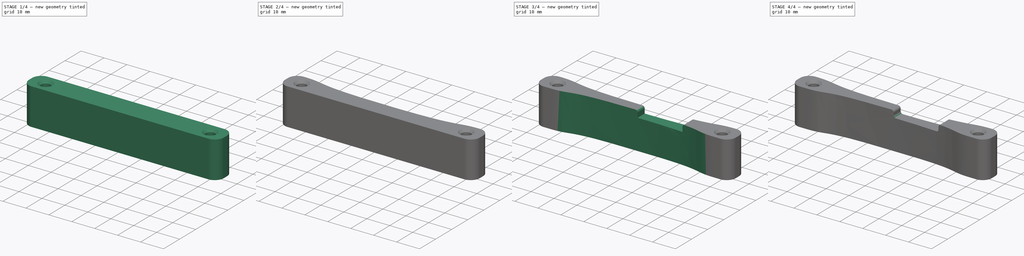
[diagram: build sequence overview — one tinted view per stage of 4, left to right]
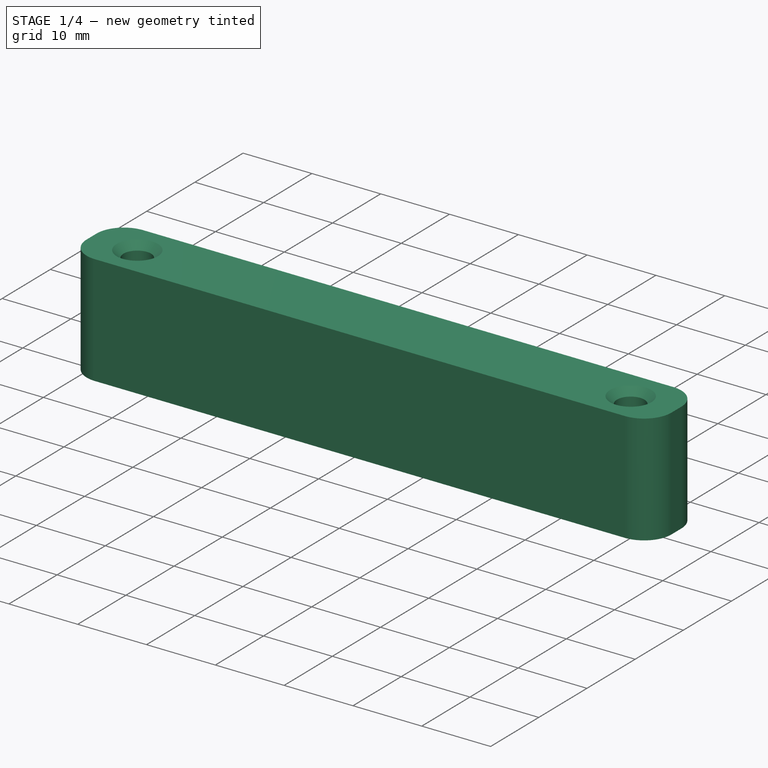
[diagram: stage 1 of 4 — iso view after this stage's code; geometry added in this stage tinted green]
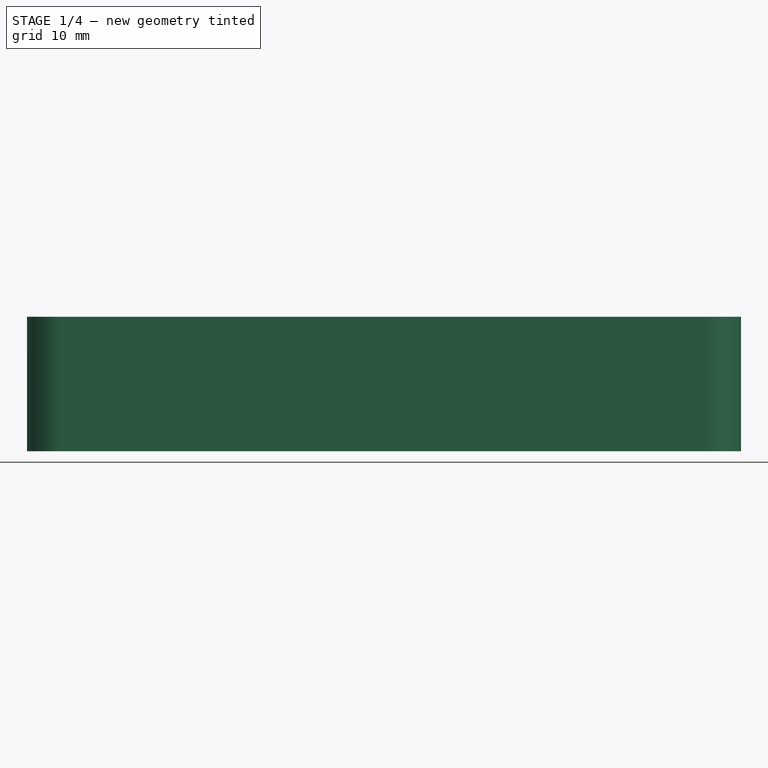
[diagram: stage 1 of 4 — front view after this stage's code; geometry added in this stage tinted green]
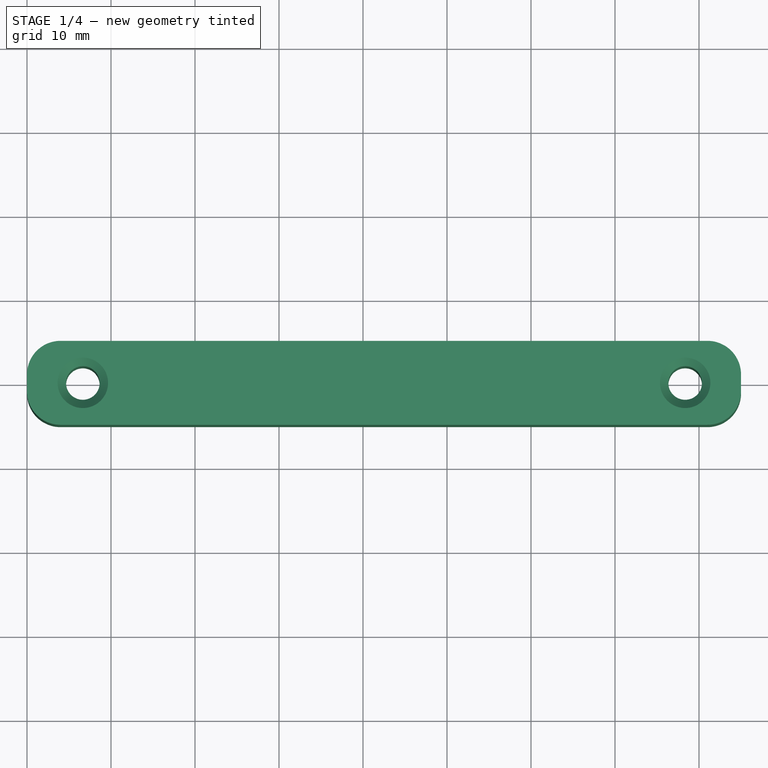
[diagram: stage 1 of 4 — top view after this stage's code; geometry added in this stage tinted green]
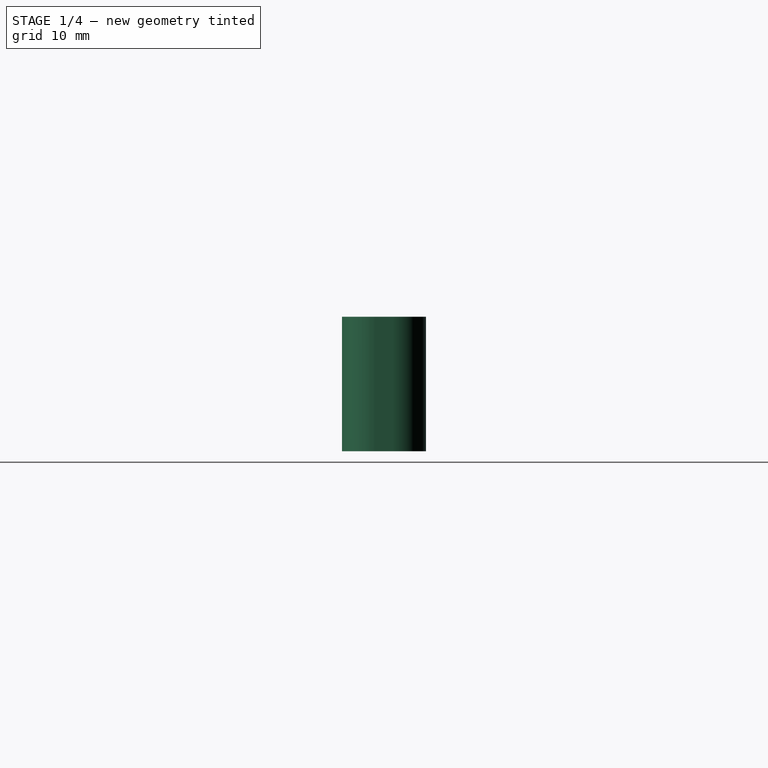
[diagram: stage 1 of 4 — right view after this stage's code; geometry added in this stage tinted green]
FCSTD DOCUMENT  (FreeCAD 0.20R29603 (Git))
Label: entretoise-simple-carte-tirettes
License: Public Domain
LicenseURL: http://en.wikipedia.org/wiki/Public_domain
objects: PartDesign::Fillet×5, Sketcher::SketchObject×4, PartDesign::Chamfer×4, PartDesign::Pocket×3, PartDesign::Pad×1, PartDesign::Body×1
note: 31 computed .brp shape members not serialized (recipe doc carries the construction recipe); baked Part::Feature solids carry a one-line shape summary decoded from their .brp

FEATURE [Sketcher::SketchObject] Sketch
  FullyConstrained = true
  MapMode = 5
  Support = -> [XY_Plane]
  sketch-geometry (16):
    g0: ArcOfCircle CenterX=4 CenterY=1 CenterZ=0 NormalX=0 NormalY=0 NormalZ=1 AngleXU=0 Radius=4 StartAngle=1.5708 EndAngle=3.14159
    g1: LineSegment StartX=4 StartY=5 StartZ=0 EndX=81 EndY=5 EndZ=0
    g2: ArcOfCircle CenterX=81 CenterY=1 CenterZ=0 NormalX=0 NormalY=0 NormalZ=1 AngleXU=0 Radius=4 StartAngle=1e-16 EndAngle=1.5708
    g3: LineSegment StartX=85 StartY=1 StartZ=0 EndX=85 EndY=-1 EndZ=0
    g4: ArcOfCircle CenterX=81 CenterY=-1 CenterZ=0 NormalX=0 NormalY=0 NormalZ=1 AngleXU=0 Radius=4 StartAngle=4.71239 EndAngle=6.28319
    g5: LineSegment StartX=81 StartY=-5 StartZ=0 EndX=4 EndY=-5 EndZ=0
    g6: ArcOfCircle CenterX=4 CenterY=-1 CenterZ=0 NormalX=0 NormalY=0 NormalZ=1 AngleXU=0 Radius=4 StartAngle=3.14159 EndAngle=4.71239
    g7: LineSegment StartX=0 StartY=-1 StartZ=0 EndX=0 EndY=1 EndZ=0
    g8: GeomPoint X=0 Y=5 Z=0
    g9: GeomPoint X=85 Y=-5 Z=0
    g10: Circle CenterX=6.65 CenterY=0 CenterZ=0 NormalX=0 NormalY=0 NormalZ=1 AngleXU=0 Radius=2
    g11: Circle CenterX=78.35 CenterY=0 CenterZ=0 NormalX=0 NormalY=0 NormalZ=1 AngleXU=0 Radius=2
    g12: LineSegment StartX=0 StartY=0 StartZ=0 EndX=6.65 EndY=0 EndZ=0
    g13: LineSegment StartX=78.35 StartY=0 StartZ=0 EndX=85 EndY=0 EndZ=0
    g14: LineSegment StartX=6.65 StartY=0 StartZ=0 EndX=6.65 EndY=5 EndZ=0
    g15: LineSegment StartX=6.65 StartY=0 StartZ=0 EndX=6.65 EndY=-5 EndZ=0
  constraints (40):
    c: Tangent(g0,g1) = 1.5708
    c: Tangent(g1,g2) = 1.5708
    c: Tangent(g2,g3) = 1.5708
    c: Tangent(g3,g4) = 1.5708
    c: Tangent(g4,g5) = 1.5708
    c: Tangent(g5,g6) = 1.5708
    c: Tangent(g6,g7) = 1.5708
    c: Tangent(g7,g0) = 1.5708
    c: Horizontal(g1)
    c: Vertical(g3)
    c: Equal(g0,g2)
    c: Equal(g2,g4)
    c: Equal(g4,g6)
    c: PointOnObject(g8,g1)
    c: PointOnObject(g8,g7)
    c: PointOnObject(g9,g3)
    c: PointOnObject(g9,g5)
    c: DistanceX(g6,g3) = 85
    c: DistanceY(g5,g0) = 10
    c: Radius(g0) = 4
    c: Tangent(g7,g-2)
    c: DistanceX(g10,g11) = 71.7
    c: Diameter(g10) = 4
    c: Diameter(g11) = 4
    c: PointOnObject(g10,g-1)
    c: Horizontal(g5)
    c: Horizontal(g10,g11)
    c: Coincident(g12,g-1)
    c: Coincident(g12,g10)
    c: Coincident(g13,g11)
    c: PointOnObject(g13,g3)
    c: Horizontal(g13)
    c: Equal(g13,g12)
    c: Coincident(g14,g10)
    c: PointOnObject(g14,g1)
    c: Vertical(g14)
    c: Coincident(g15,g10)
    c: PointOnObject(g15,g5)
    c: Vertical(g15)
    c: Equal(g15,g14)
FEATURE [PartDesign::Pad] Pad
  Direction = (0,0,1)
  Length = 16
  Length2 = 10
  Profile = -> Sketch
  ReferenceAxis = -> Sketch [N_Axis]
  Type = 0
FEATURE [PartDesign::Chamfer] Chamfer
  Angle = 45
  Base = -> Pad [Edge27]
  BaseFeature = -> Pad
  ChamferType = 0
  FlipDirection = false
  Size = 1
  Size2 = 1
  SupportTransform = false
  UseAllEdges = false
FEATURE [PartDesign::Chamfer] Chamfer001
  Angle = 45
  Base = -> Chamfer [Edge23]
  BaseFeature = -> Chamfer
  ChamferType = 0
  FlipDirection = false
  Size = 1
  Size2 = 1
  SupportTransform = false
  UseAllEdges = false
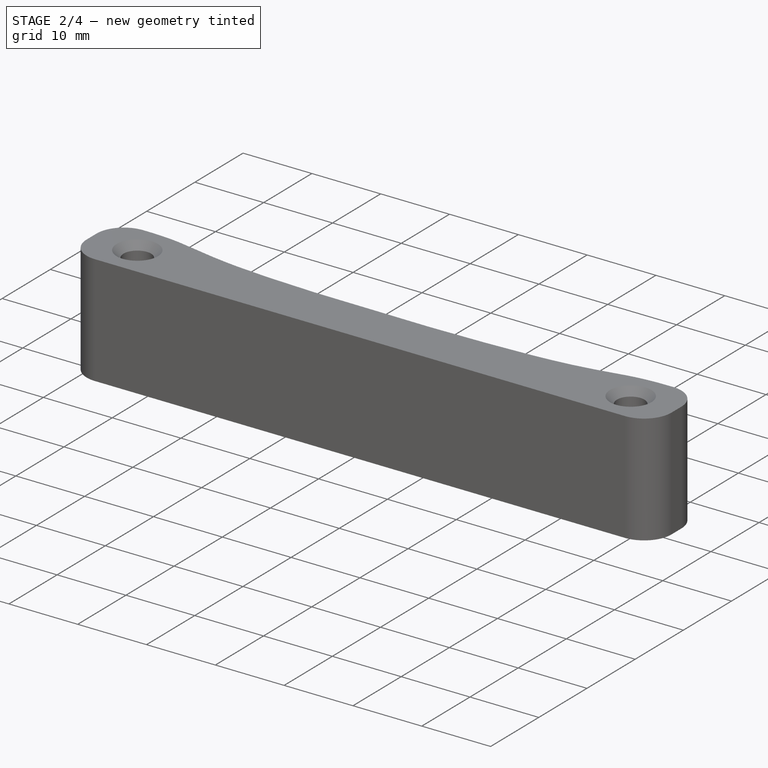
[diagram: stage 2 of 4 — iso view after this stage's code; geometry added in this stage tinted green]
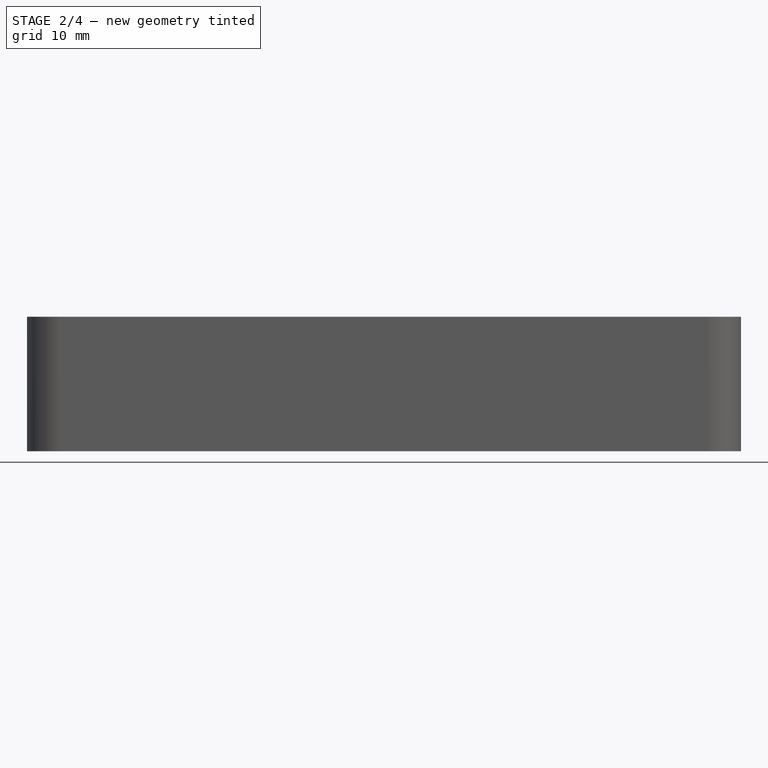
[diagram: stage 2 of 4 — front view after this stage's code; geometry added in this stage tinted green]
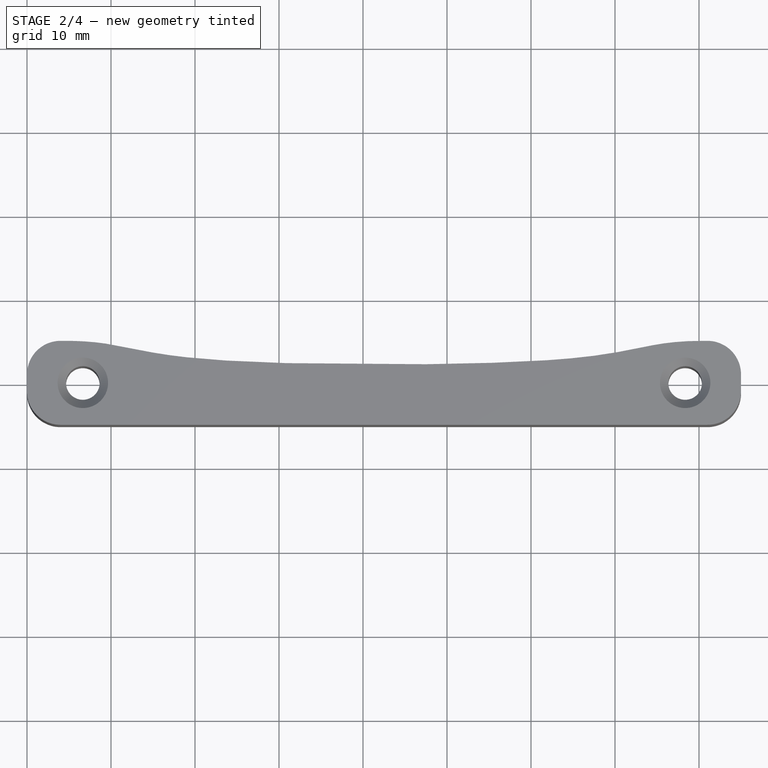
[diagram: stage 2 of 4 — top view after this stage's code; geometry added in this stage tinted green]
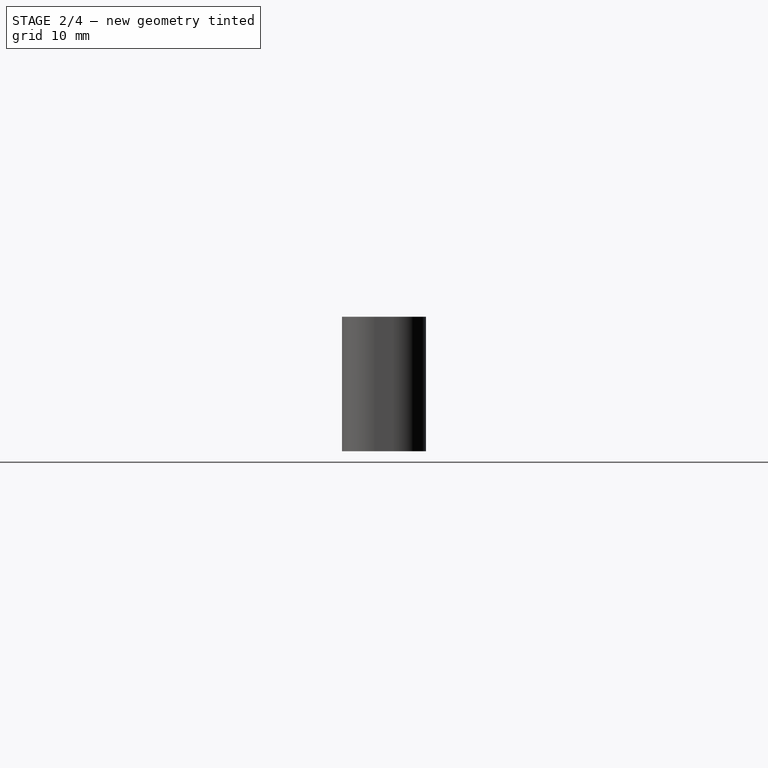
[diagram: stage 2 of 4 — right view after this stage's code; geometry added in this stage tinted green]
FEATURE [PartDesign::Chamfer] Chamfer002
  Angle = 45
  Base = -> Chamfer001 [Edge32]
  BaseFeature = -> Chamfer001
  ChamferType = 0
  FlipDirection = false
  Size = 1
  Size2 = 1
  SupportTransform = false
  UseAllEdges = false
FEATURE [PartDesign::Chamfer] Chamfer003
  Angle = 45
  Base = -> Chamfer002 [Edge16]
  BaseFeature = -> Chamfer002
  ChamferType = 0
  FlipDirection = false
  Size = 1
  Size2 = 1
  SupportTransform = false
  UseAllEdges = false
FEATURE [Sketcher::SketchObject] Sketch001
  ExternalGeometry = -> [Chamfer003]
  FullyConstrained = true
  MapMode = 5
  Placement = pos=(0,0,0) rot=(1,0,0;3.14159rad)
  Support = -> [Chamfer003]
  sketch-geometry (14):
    g0-g5: Circle x6 (B-spline internal-alignment scaffolding for g6; pole/knot coordinates omitted)
    g6: BSplineCurve PolesCount=6 KnotsCount=4 Degree=3 IsPeriodic=0
    g7: GeomPoint X=42.5 Y=5 Z=0
    g8: LineSegment StartX=12.5 StartY=2 StartZ=0 EndX=72.5 EndY=2 EndZ=0
    g9: GeomPoint X=85 Y=0 Z=0
    g10: GeomPoint X=42.5 Y=0 Z=0
    g11: LineSegment StartX=42.5 StartY=0 StartZ=0 EndX=42.5 EndY=5 EndZ=0
    g12: GeomPoint X=42.5 Y=2 Z=0
    g13: LineSegment StartX=7 StartY=5 StartZ=0 EndX=78 EndY=5 EndZ=0
  constraints (26):
    c: Weight(g0) = 1
    c: PointOnObject(g6,g-3)
    c: Equal(g0, g1-g5) x5
    c: PointOnObject(g6,g-3)
    c: InternalAlignment(g0-g5 -> g6) x6
    c: Symmetric(g-3,g-3,g7)
    c: PointOnObject(g1,g-3)
    c: PointOnObject(g4,g-3)
    c: DistanceX(g-3,g6) = 3
    c: DistanceX(g6,g-3) = 3
    c: DistanceX(g6,g1) = 7
    c: DistanceX(g4,g6) = 7
    c: DistanceY(g-1,g2) = 2
    c: Horizontal(g3,g2)
    c: DistanceX(g2,g3) = 60
    c: Coincident(g8,g2)
    c: Coincident(g8,g3)
    c: PointOnObject(g9,g-5)
    c: PointOnObject(g9,g-1)
    c: Symmetric(g-1,g9,g10)
    c: Coincident(g11,g10)
    c: Coincident(g11,g7)
    c: PointOnObject(g12,g11)
    c: Symmetric(g2,g3,g12)
    c: Coincident(g13,g6)
    c: Coincident(g13,g6)
FEATURE [Sketcher::SketchObject] MirroredSketch
  FullyConstrained = false
  Placement = pos=(0,0,0) rot=(1,0,0;3.14159rad)
  sketch-geometry (14):
    g0-g5: Circle x6 (B-spline internal-alignment scaffolding for g6; pole/knot coordinates omitted)
    g6: BSplineCurve PolesCount=6 KnotsCount=4 Degree=3 IsPeriodic=0
    g7: GeomPoint X=42.5 Y=-5 Z=0
    g8: LineSegment StartX=12.5 StartY=-2 StartZ=0 EndX=72.5 EndY=-2 EndZ=0
    g9: GeomPoint X=85 Y=0 Z=0
    g10: GeomPoint X=42.5 Y=0 Z=0
    g11: LineSegment StartX=42.5 StartY=0 StartZ=0 EndX=42.5 EndY=-5 EndZ=0
    g12: GeomPoint X=42.5 Y=-2 Z=0
    g13: LineSegment StartX=4.48 StartY=-5 StartZ=0 EndX=80.52 EndY=-5 EndZ=0
  constraints (11):
    c: Weight(g0) = 1
    c: Equal(g0, g1-g5) x5
    c: InternalAlignment(g0-g5 -> g6) x6
    c: Coincident(g8,g2)
    c: Coincident(g8,g3)
    c: Coincident(g11,g10)
    c: Coincident(g11,g7)
    c: PointOnObject(g12,g11)
    c: Symmetric(g2,g3,g12)
    c: Coincident(g13,g6)
    c: Coincident(g13,g6)
FEATURE [PartDesign::Pocket] Pocket
  BaseFeature = -> Chamfer003
  Direction = (0,0,1)
  Length = 5
  Length2 = 5
  Profile = -> MirroredSketch
  ReferenceAxis = -> MirroredSketch [N_Axis]
  Type = 1
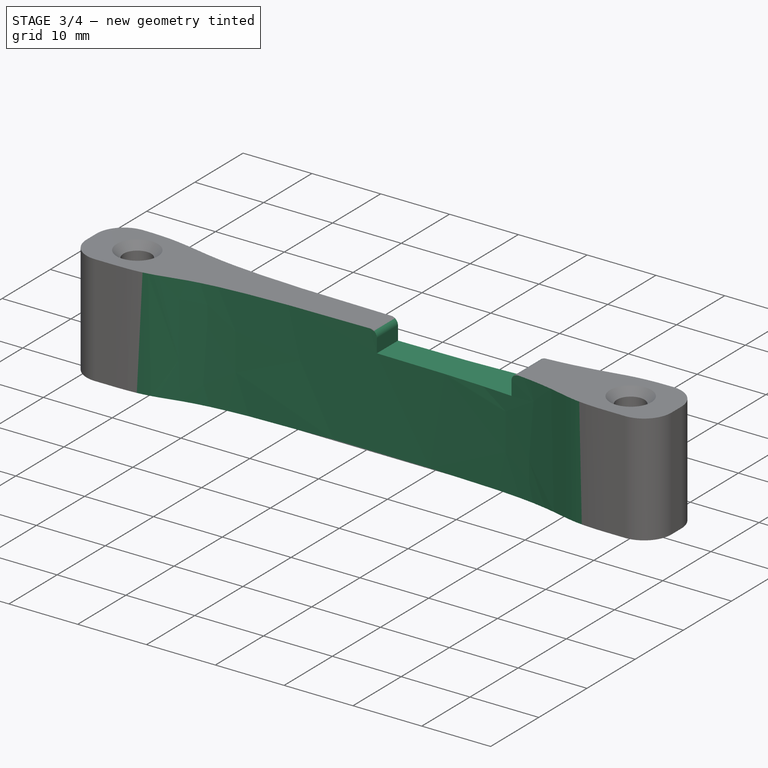
[diagram: stage 3 of 4 — iso view after this stage's code; geometry added in this stage tinted green]
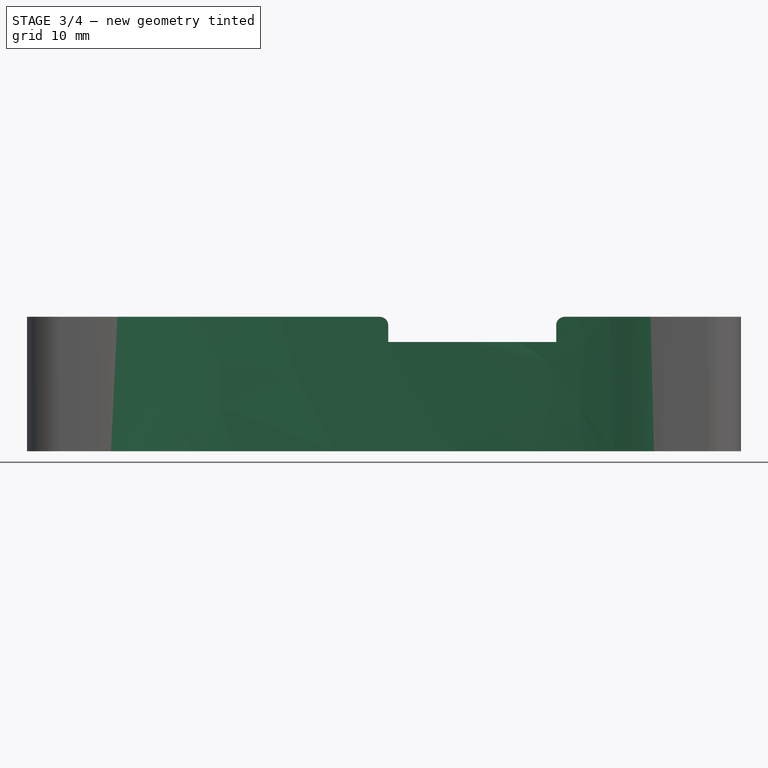
[diagram: stage 3 of 4 — front view after this stage's code; geometry added in this stage tinted green]
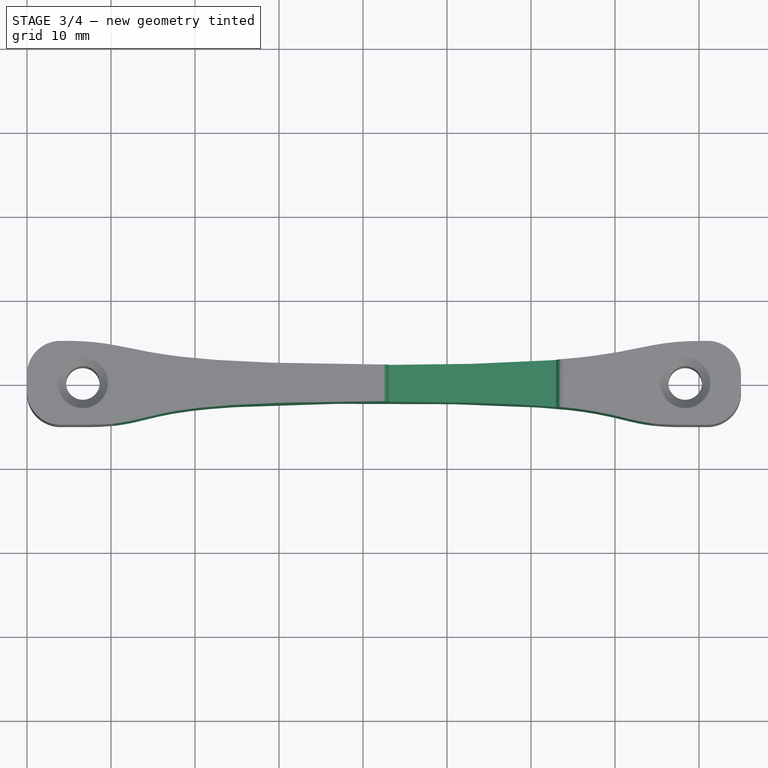
[diagram: stage 3 of 4 — top view after this stage's code; geometry added in this stage tinted green]
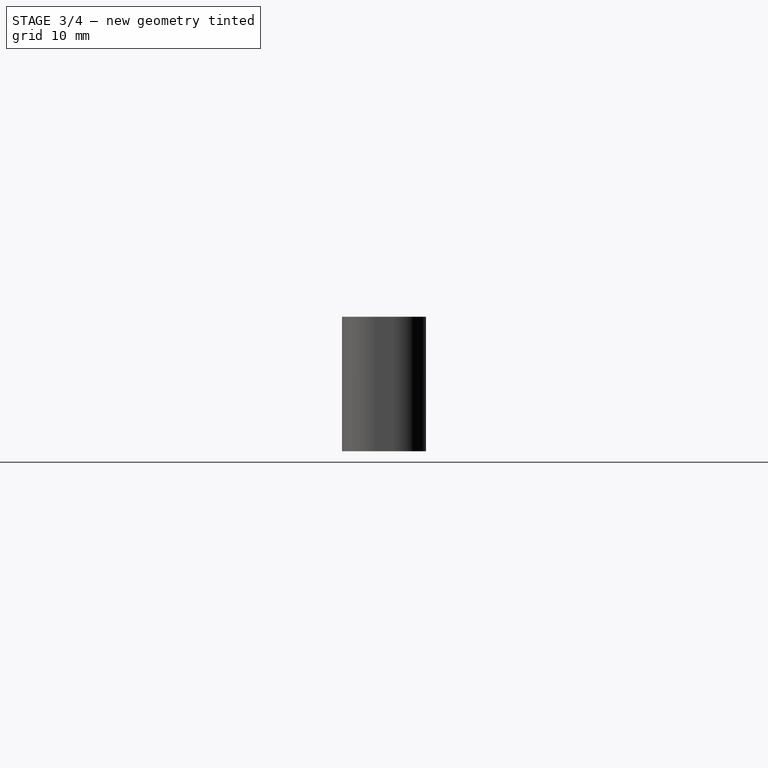
[diagram: stage 3 of 4 — right view after this stage's code; geometry added in this stage tinted green]
FEATURE [PartDesign::Pocket] Pocket001
  BaseFeature = -> Pocket
  Direction = (0,0,1)
  Length = 5
  Length2 = 5
  Profile = -> Sketch001
  ReferenceAxis = -> Sketch001 [N_Axis]
  Type = 1
FEATURE [Sketcher::SketchObject] Sketch002
  ExternalGeometry = -> [Pocket001]
  FullyConstrained = true
  MapMode = 5
  Placement = pos=(0,0,16) rot=(0,0,1;0rad)
  Support = -> [Pocket001]
  sketch-geometry (4):
    g0: LineSegment StartX=43 StartY=3.5 StartZ=0 EndX=63 EndY=3.5 EndZ=0
    g1: LineSegment StartX=63 StartY=3.5 StartZ=0 EndX=63 EndY=-3.5 EndZ=0
    g2: LineSegment StartX=63 StartY=-3.5 StartZ=0 EndX=43 EndY=-3.5 EndZ=0
    g3: LineSegment StartX=43 StartY=-3.5 StartZ=0 EndX=43 EndY=3.5 EndZ=0
  constraints (11):
    c: Coincident(g0,g1)
    c: Coincident(g1,g2)
    c: Coincident(g2,g3)
    c: Coincident(g3,g0)
    c: Horizontal(g0)
    c: Horizontal(g2)
    c: Vertical(g3)
    c: DistanceX(g0,g-3) = 22
    c: DistanceX(g0,g0) = 20
    c: DistanceY(g1,g1) = 7
    c: Symmetric(g0,g1,g-1)
FEATURE [PartDesign::Pocket] Pocket002
  BaseFeature = -> Pocket001
  Direction = (0,0,-1)
  Length = 3
  Length2 = 5
  Profile = -> Sketch002
  ReferenceAxis = -> Sketch002 [N_Axis]
  Type = 0
FEATURE [PartDesign::Fillet] Fillet
  Base = -> Pocket002 [Edge51]
  BaseFeature = -> Pocket002
  Radius = 1
  SupportTransform = false
  UseAllEdges = false
FEATURE [PartDesign::Fillet] Fillet001
  Base = -> Fillet [Edge24]
  BaseFeature = -> Fillet
  Radius = 1
  SupportTransform = false
  UseAllEdges = false
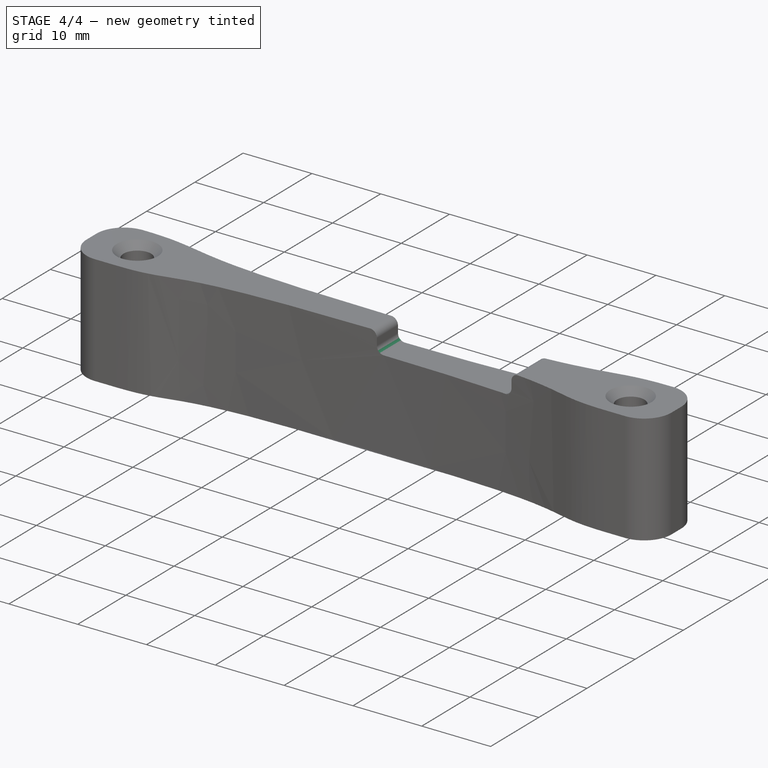
[diagram: stage 4 of 4 — iso view after this stage's code; geometry added in this stage tinted green]
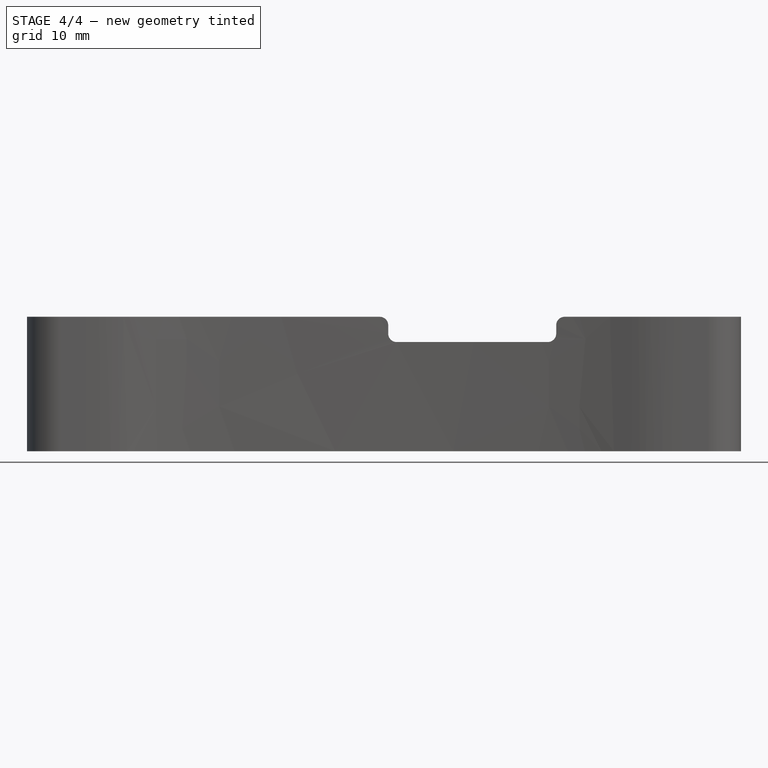
[diagram: stage 4 of 4 — front view after this stage's code; geometry added in this stage tinted green]
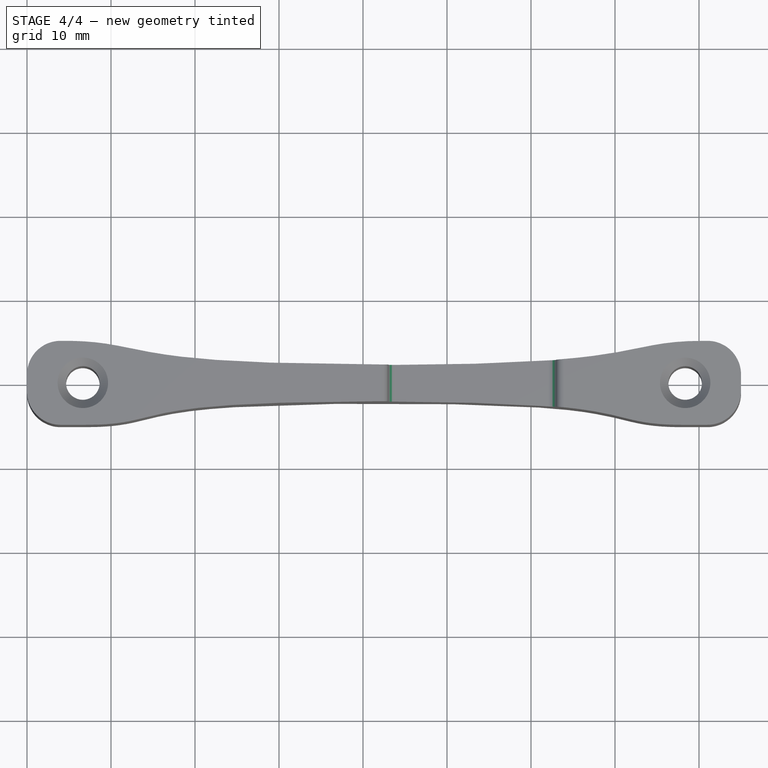
[diagram: stage 4 of 4 — top view after this stage's code; geometry added in this stage tinted green]
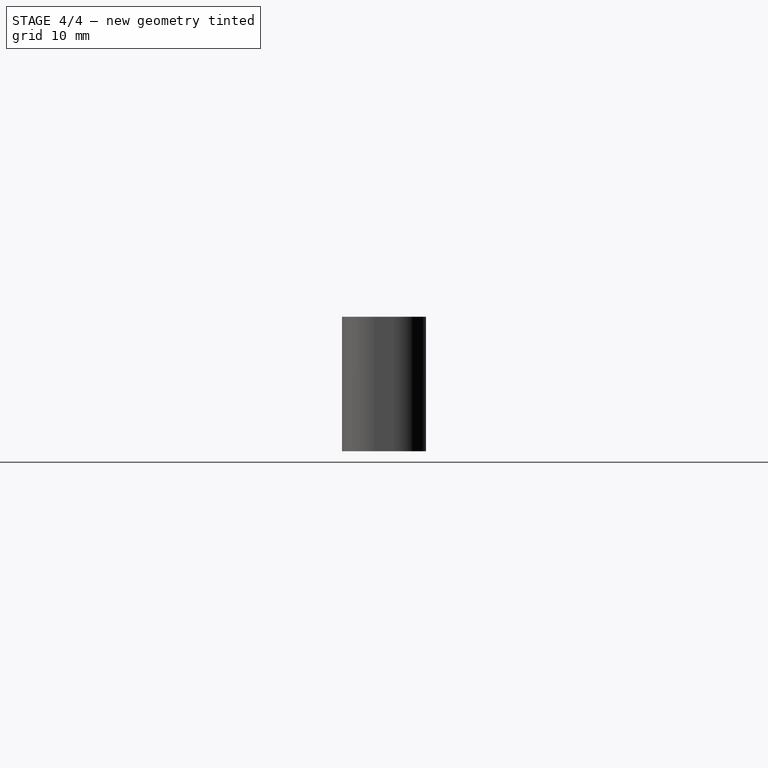
[diagram: stage 4 of 4 — right view after this stage's code; geometry added in this stage tinted green]
FEATURE [PartDesign::Fillet] Fillet002
  Base = -> Fillet001 [Edge17]
  BaseFeature = -> Fillet001
  Radius = 1
  SupportTransform = false
  UseAllEdges = false
FEATURE [PartDesign::Fillet] Fillet003
  Base = -> Fillet001 [Edge13]
  BaseFeature = -> Fillet001
  Radius = 1
  SupportTransform = false
  UseAllEdges = false
FEATURE [PartDesign::Fillet] Fillet004
  Base = -> Fillet003 [Edge19]
  BaseFeature = -> Fillet003
  Radius = 1
  SupportTransform = false
  UseAllEdges = false
FEATURE [PartDesign::Body] Body
  Group = -> [Sketch,Pad,Chamfer,Chamfer001,Chamfer002,Chamfer003,Sketch001,MirroredSketch,Pocket,Pocket001,Sketch002,Pocket002,Fillet,Fillet001,Fillet002,Fillet003,Fillet004]
  Origin = -> Origin
  Tip = -> Fillet004
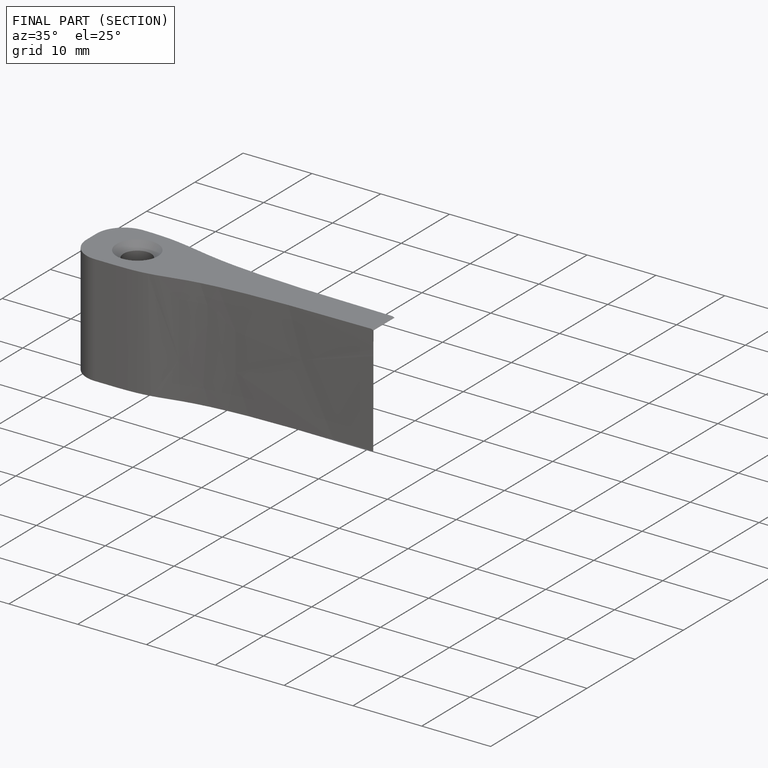
[diagram: finished part — half-section view (interior)]
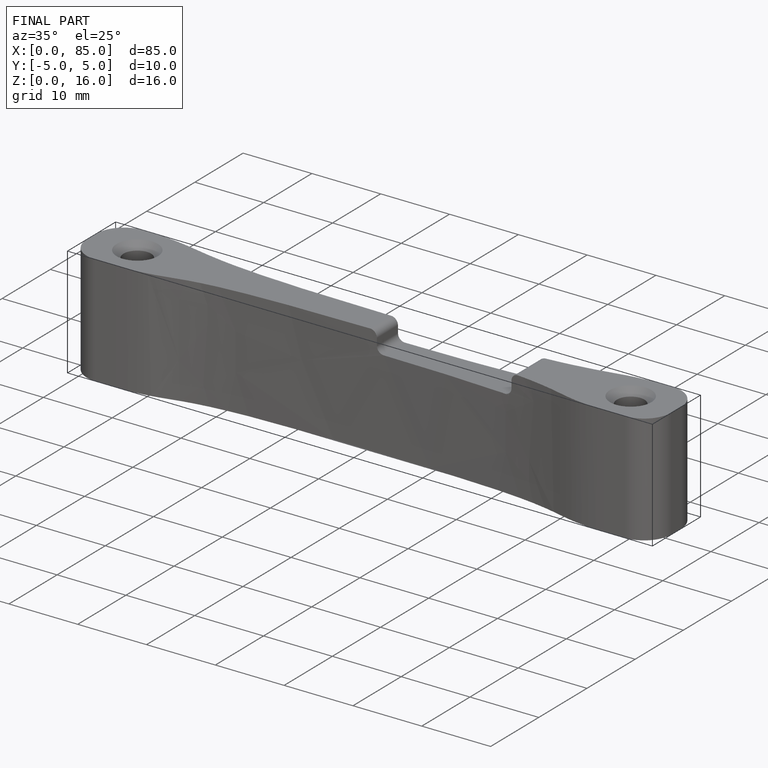
[diagram: finished part — iso view with bounding-box wireframe]
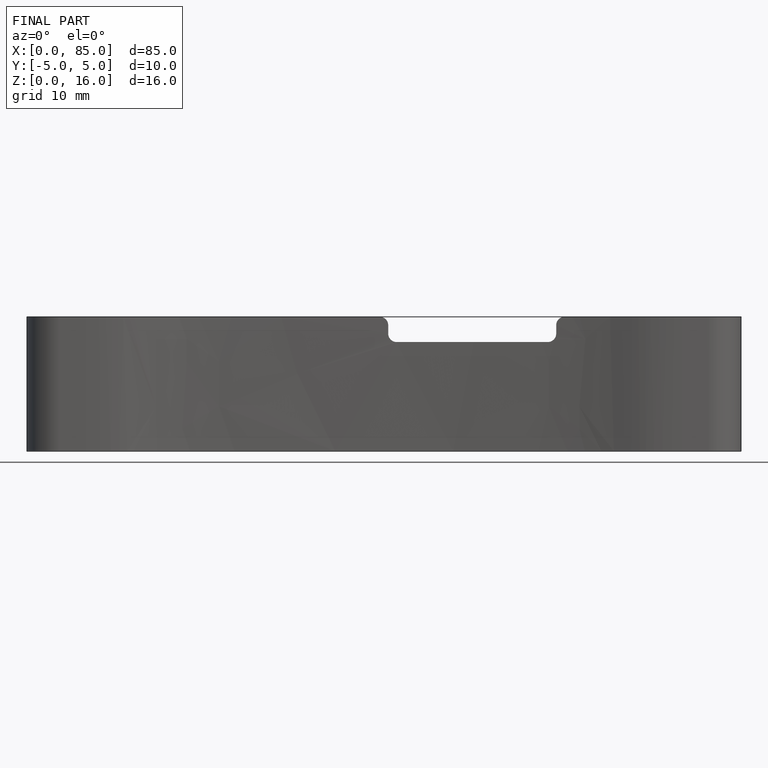
[diagram: finished part — front view with bounding-box wireframe]
